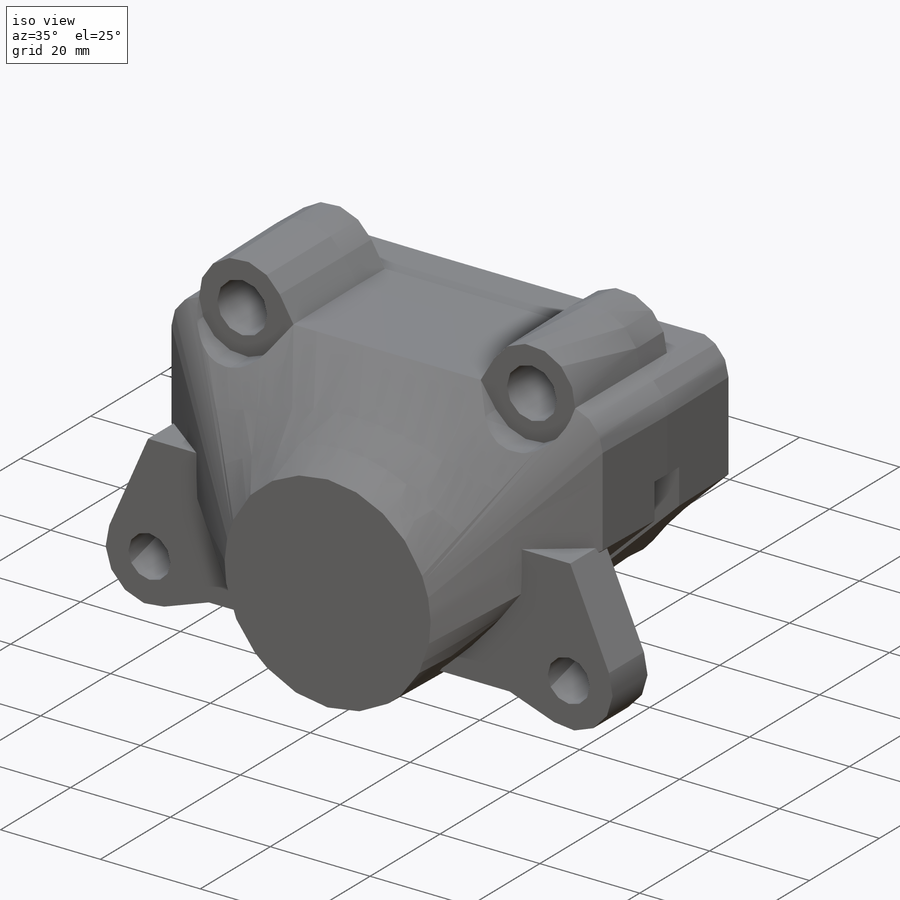
[diagram: iso view]
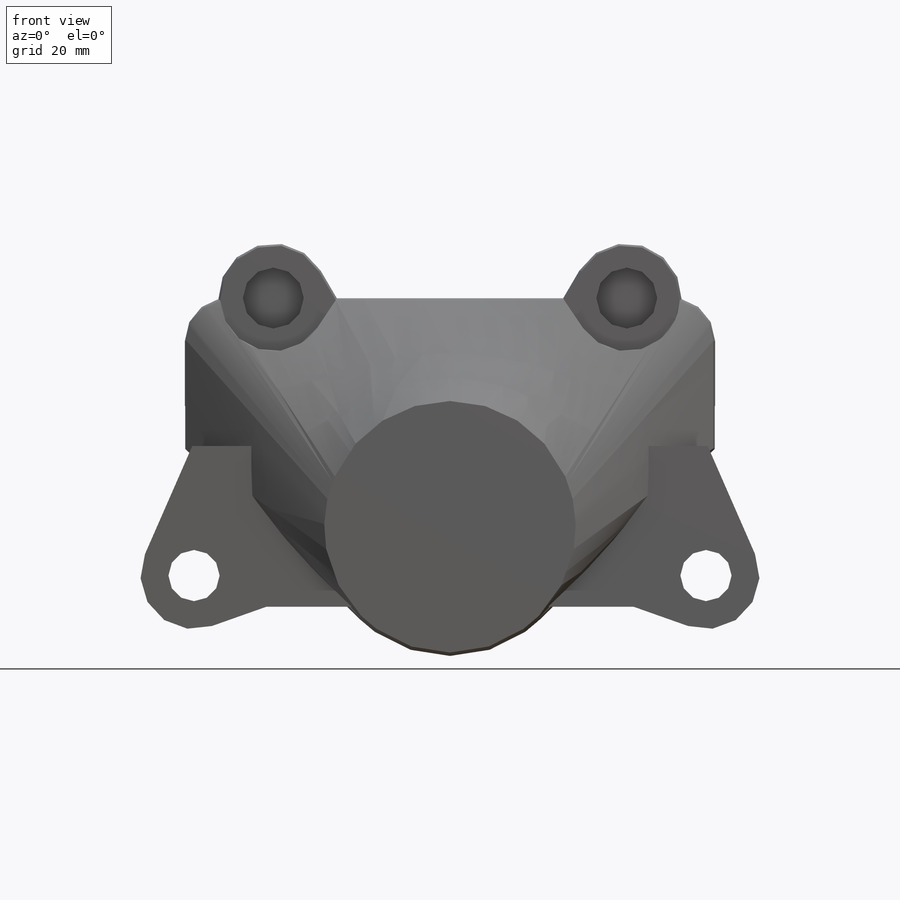
[diagram: front view]
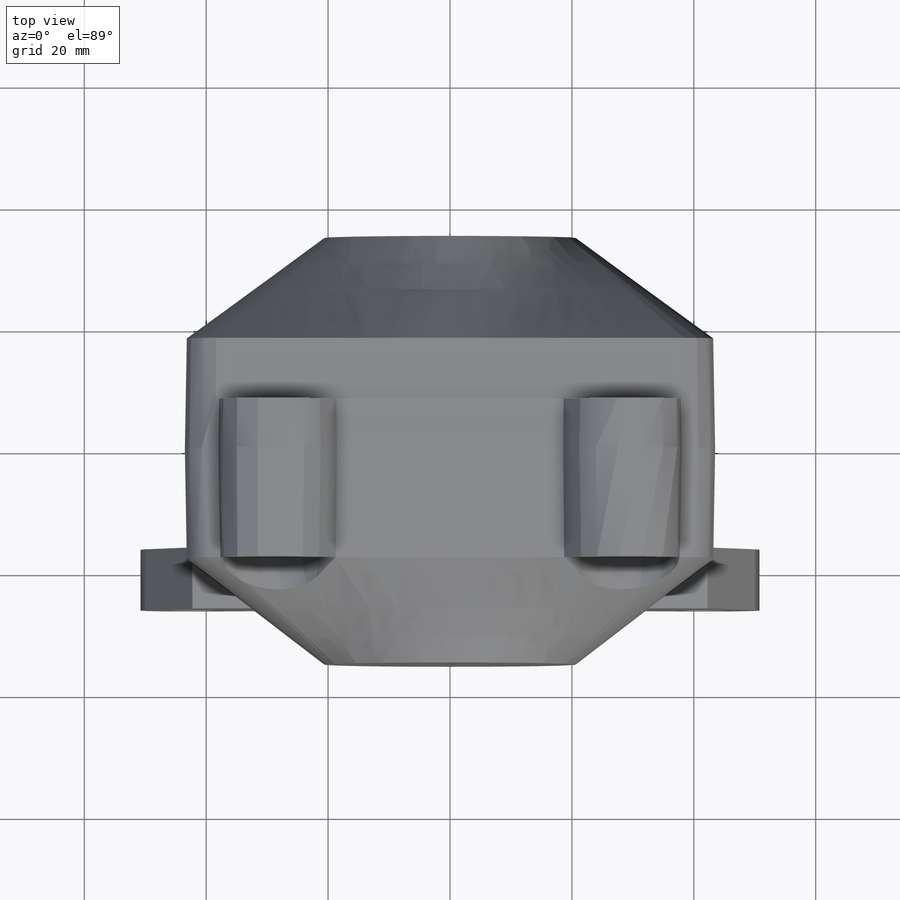
[diagram: top view]
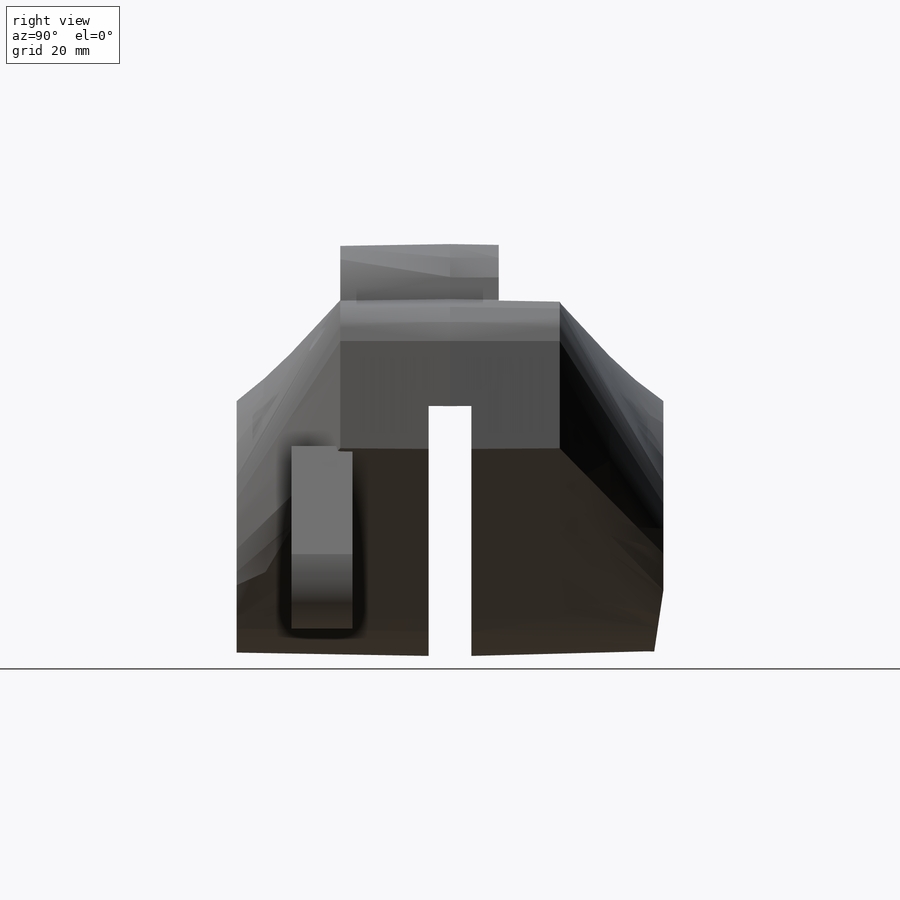
[diagram: right view]
SOLIDWORKS PART (.sldprt)
format: sldprt  version: not decoded by parser v0  size: 521,216 bytes
history: native  units: mm
features: sketch x13, cut_extrude x6, plane x5, extrude x3, mirror x2, material x1 (+8 scaffold rows collapsed)
feature tree (38):
  scaffold x8  (default folders/planes/origin — collapsed)
  material  "6061-T6 (SS)"
  plane  "Plane1"
  plane  "Plane2"
  plane  "Plane3"
  sketch  "Reference"  dims[c1.D1=8.4mm c1.D6=42.5mm c1.D7=10.0mm c1.D8=6.0mm c1.D11=145.0mm c1.D12=110.0mm c1.D14=9.9mm c1.D2=84.0mm c1.D3=8.0mm c1.D4=45.5mm c1.D5=29.0mm c1.D9=64.0mm c1.D10=30.0mm c2.D11=~1.127719mm c2.D13=17.5mm]
  sketch  "Sketch2"  dims[c1.D3=9.0mm c1.D1=87.0mm c1.D2=37.15mm c1.D4=58.0mm c1.D5=45.5mm c1.D6=90.0deg c2.D6=37.15mm c2.D7=90.0deg c2.D2=58.4mm c3.D6=90.0deg c3.D2=37.5mm c3.D7=90.0deg c4.D6=12.75mm c4.D7=45.5mm]
  extrude  "Base-Extrude"  Depth=36mm
  sketch  "Sketch6"
  extrude  "Boss-Extrude1"  [1 undecoded]
  sketch  "Sketch3"  dims[c1.D1=8.4mm c1.D2=84.0mm c2.D1=10.0mm]
  extrude  "Boss-Extrude2"  Depth=17mm
  plane  "Plane4"  Offset=16mm
  plane  "Plane5"  Offset=8mm
  sketch  "Sketch5"  dims[D1=150.0mm D2=123.75mm]
  cut_extrude  "Cut-Extrude2"  Depth=7mm
  mirror  "Mirror1"
  sketch  "Sketch4"
  cut_extrude  "Cut-Extrude3"  Depth=17.5mm
  sketch  "Sketch7"  dims[D1=0.0mm]
  sketch  "Sketch8"  dims[D1=0.0mm]
  mirror  "Boss-Loft6"
  sketch  "Sketch9"  dims[D1=0.0mm D2=0.0mm]
  cut_extrude  "Cut-Extrude4"  Depth=49.5mm
  sketch  "Sketch10"  dims[D1=10.0mm]
  cut_extrude  "Cut-Extrude5"  Depth=12.5mm
  sketch  "Sketch11"  dims[D1=20.0mm]
  cut_extrude  "Extrude1"  [1 undecoded]
  sketch  "Sketch12"  dims[D1=185.0mm]
  sketch  "Sketch13"  dims[D1=10.16mm D2=1.524mm]
  cut_extrude  "Extrude2"  [1 undecoded]
decode coverage: 17 of 24 modeling features carry decoded parameters
note: ~ marks probable driven/reference dimensions
note: 3 parameter values undecoded
summary: no parameter record found for 3 features
note: suppression state not decoded; provenance and decode notes live in map.json
